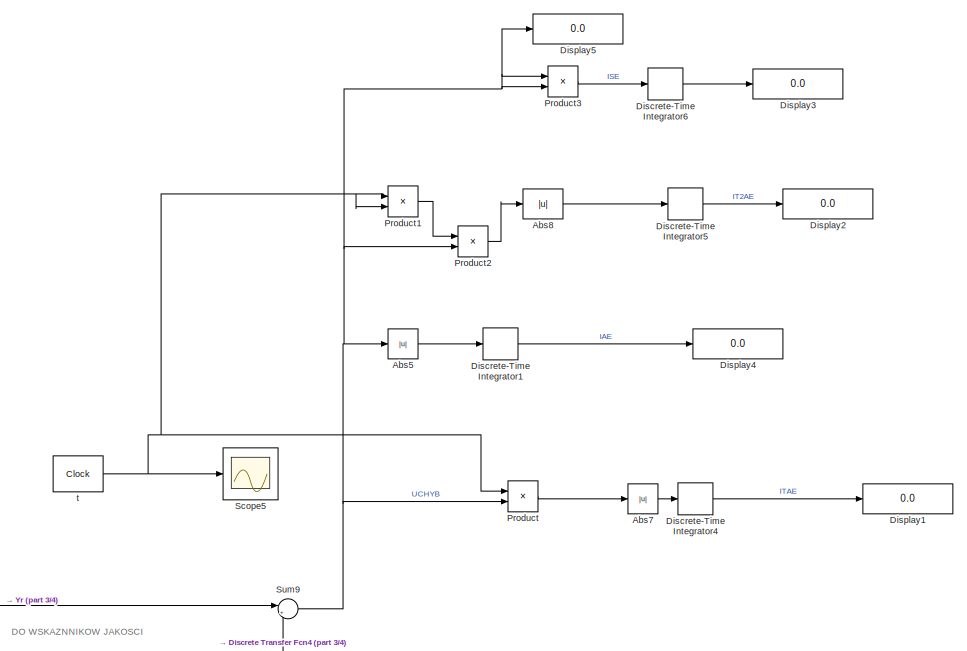
[diagram: root canvas - part 1/4, top center region]
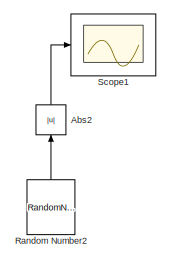
[diagram: root canvas - part 2/4, middle right region]
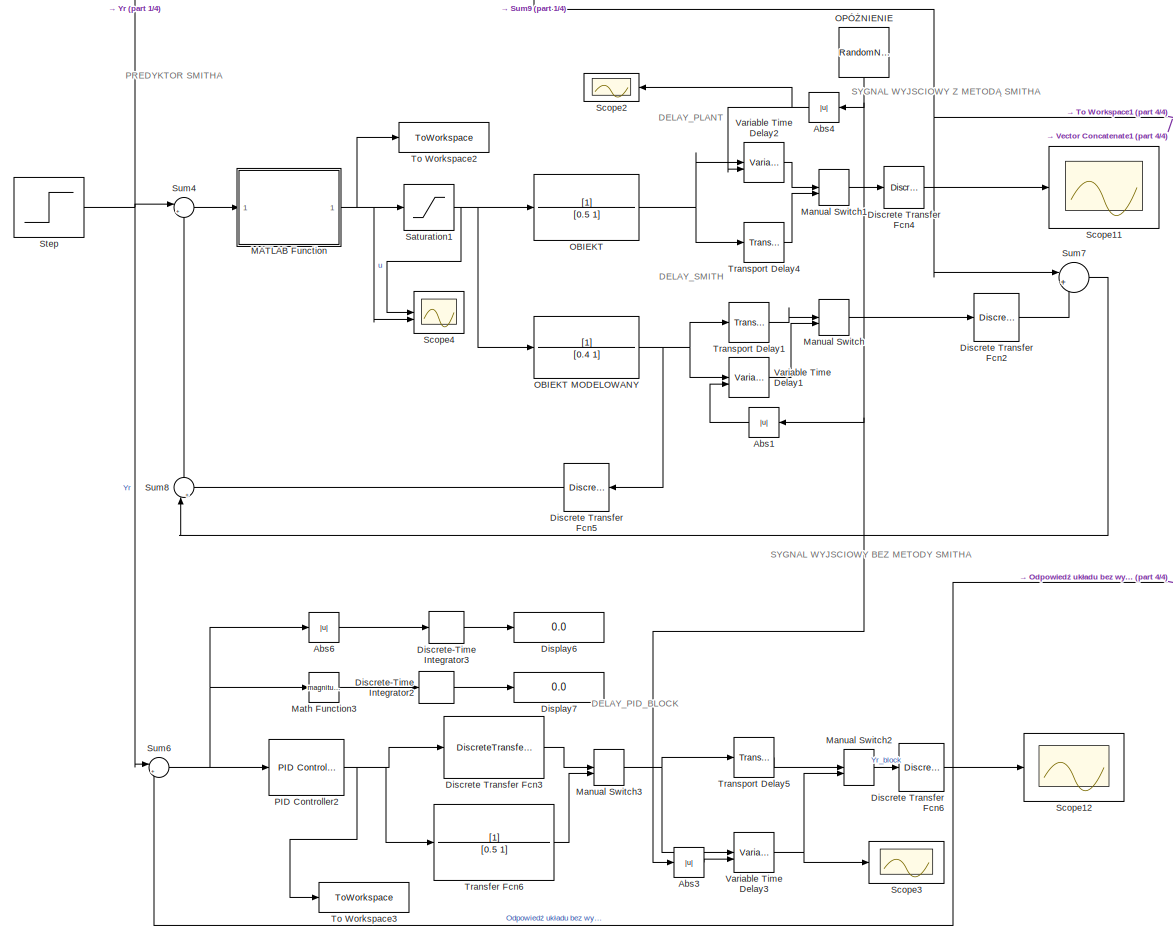
[diagram: root canvas - part 3/4, bottom center region]
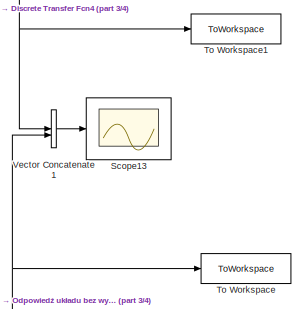
[diagram: root canvas - part 4/4, middle right region]
MODEL slx_78ecf700ef5c
KIND model
CONFIG AbsTol = auto
CONFIG EnableMultiTasking = off
CONFIG FixedStep = auto
CONFIG MaxStep = auto
CONFIG MinStep = auto
CONFIG RelTol = 1e-3
CONFIG SampleTimeConstraint = Unconstrained
CONFIG SolverName = FixedStepAuto
CONFIG StartTime = 0.0
CONFIG StopTime = 40
BLOCK [Abs] Abs1
  NameLocation = top
  SaturateOnIntegerOverflow = off
BLOCK [Abs] Abs2
  NameLocation = right
  SaturateOnIntegerOverflow = off
BLOCK [Abs] Abs3
  SaturateOnIntegerOverflow = off
BLOCK [Abs] Abs4
  NameLocation = top
  SaturateOnIntegerOverflow = off
BLOCK [Abs] Abs5
  SaturateOnIntegerOverflow = off
BLOCK [Abs] Abs6
  SaturateOnIntegerOverflow = off
BLOCK [Abs] Abs7
  SaturateOnIntegerOverflow = off
BLOCK [Abs] Abs8
  SaturateOnIntegerOverflow = off
BLOCK [DiscreteTransferFcn] Discrete Transfer Fcn2
  Denominator = [1]
  InputPortMap = u0
  SampleTime = Ts
BLOCK [DiscreteTransferFcn] Discrete Transfer Fcn3
  Denominator = [1 -0.9048]
  InputPortMap = u0
  Numerator = [ 0.09516]
  SampleTime = Ts
BLOCK [DiscreteTransferFcn] Discrete Transfer Fcn4
  Denominator = [1]
  InputPortMap = u0
  SampleTime = Ts
BLOCK [DiscreteTransferFcn] Discrete Transfer Fcn5
  Denominator = [1]
  InputPortMap = u0
  NameLocation = top
  SampleTime = Ts
BLOCK [DiscreteTransferFcn] Discrete Transfer Fcn6
  Denominator = [1]
  InputPortMap = u0
  SampleTime = Ts
BLOCK [DiscreteIntegrator] Discrete-Time Integrator1
  ICPrevOutput = DiscIntNeverNeededParam
  ICPrevScaledInput = DiscIntNeverNeededParam
  InitialConditionSetting = Auto
  SampleTime = Ts
BLOCK [DiscreteIntegrator] Discrete-Time Integrator2
  ICPrevOutput = DiscIntNeverNeededParam
  ICPrevScaledInput = DiscIntNeverNeededParam
  InitialConditionSetting = Auto
  SampleTime = Ts
BLOCK [DiscreteIntegrator] Discrete-Time Integrator3
  ICPrevOutput = DiscIntNeverNeededParam
  ICPrevScaledInput = DiscIntNeverNeededParam
  InitialConditionSetting = Auto
  SampleTime = Ts
BLOCK [DiscreteIntegrator] Discrete-Time Integrator4
  ICPrevOutput = DiscIntNeverNeededParam
  ICPrevScaledInput = DiscIntNeverNeededParam
  InitialConditionSetting = Auto
  SampleTime = Ts
BLOCK [DiscreteIntegrator] Discrete-Time Integrator5
  ICPrevOutput = DiscIntNeverNeededParam
  ICPrevScaledInput = DiscIntNeverNeededParam
  InitialConditionSetting = Auto
  SampleTime = Ts
BLOCK [DiscreteIntegrator] Discrete-Time Integrator6
  ICPrevOutput = DiscIntNeverNeededParam
  ICPrevScaledInput = DiscIntNeverNeededParam
  InitialConditionSetting = Auto
  SampleTime = Ts
BLOCK [Display] Display1
  Decimation = 1
BLOCK [Display] Display2
  Decimation = 1
BLOCK [Display] Display3
  Decimation = 1
BLOCK [Display] Display4
  Decimation = 1
BLOCK [Display] Display5
  Decimation = 1
BLOCK [Display] Display6
  Decimation = 1
BLOCK [Display] Display7
  Decimation = 1
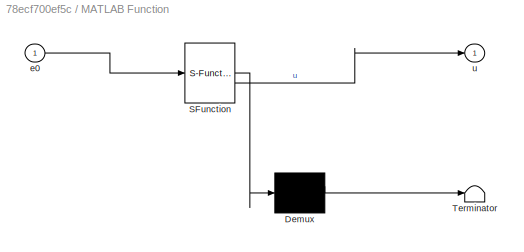
BLOCK [SubSystem] MATLAB Function
  ErrorFcn = Stateflow.Translate.translate
  LibrarySourceBlock = simulink/User-Defined\nFunctions/MATLAB Function
  PermitHierarchicalResolution = ExplicitOnly
  SFBlockType = MATLAB Function
  TreatAsAtomicUnit = on
BLOCK [Demux] MATLAB Function/ Demux 
  Outputs = 1
BLOCK [S-Function] MATLAB Function/ SFunction 
  EnableBusSupport = on
  FunctionName = sf_sfun
  PortCounts = [1 2]
  SFcnIsStateOwnerBlock = off
  SFunctionDeploymentMode = off
  Tag = Stateflow S-Function 2
BLOCK [Terminator] MATLAB Function/ Terminator 
BLOCK [Inport] MATLAB Function/e0
BLOCK [Outport] MATLAB Function/u
BLOCK [ManualSwitch] Manual Switch
  CurrentSetting = 0
BLOCK [ManualSwitch] Manual Switch1
BLOCK [ManualSwitch] Manual Switch2
  CurrentSetting = 0
BLOCK [ManualSwitch] Manual Switch3
  CurrentSetting = 0
BLOCK [Math] Math Function3
  Operator = magnitude^2
  SignedPower = on
BLOCK [TransferFcn] OBIEKT
  Denominator = [0.5 1]
BLOCK [TransferFcn] OBIEKT MODELOWANY
  Denominator = [0.4 1]
BLOCK [RandomNumber] OPÓŻNIENIE
  Mean = MeanValue_random
  NameLocation = left
  SampleTime = Ts
  Variance = 0.0001
BLOCK [Reference] PID Controller2  REF=slpidlib/PID Controller
  SourceBlock = slpidlib/PID Controller
  SourceType = PID 1dof
BLOCK [Product] Product
BLOCK [Product] Product1
BLOCK [Product] Product2
BLOCK [Product] Product3
BLOCK [RandomNumber] Random Number2
  Mean = 0.08
  NameLocation = right
  SampleTime = 0.01
  Variance = 0.0001
BLOCK [Saturate] Saturation1
  LowerLimit = 0
  UpperLimit = 1000
BLOCK [Scope] Scope1
  Floating = off
  NumInputPorts = 1
  ScopeSpecificationString = Simulink.scopes.TimeScopeBlockCfg('CurrentConfiguration', extmgr.ConfigurationSet(extmgr.Configuration('Core','General UI',true),extmgr.Configuration('Core','Source UI',true),extmgr.Configuration('Sources','WiredSimulink',true,'DataLoggingVariableName','ScopeData1'),extmgr.Configuration('Visuals','Time Domain',true,'SerializedDisplays',{struct('MinYLimReal','0.04367','MaxYLimReal','0.11967','YLabe...<+1361ch>
BLOCK [Scope] Scope11
  Floating = off
  NumInputPorts = 1
  ScopeSpecificationString = Simulink.scopes.TimeScopeBlockCfg('CurrentConfiguration', extmgr.ConfigurationSet(extmgr.Configuration('Core','General UI',true),extmgr.Configuration('Core','Source UI',true),extmgr.Configuration('Sources','WiredSimulink',true,'DataLoggingVariableName','ScopeData2'),extmgr.Configuration('Visuals','Time Domain',true,'SerializedDisplays',{struct('MinYLimReal','-21.25','MaxYLimReal','191.25','YLabelR...<+1425ch>
BLOCK [Scope] Scope12
  Floating = off
  NumInputPorts = 1
  ScopeSpecificationString = Simulink.scopes.TimeScopeBlockCfg('CurrentConfiguration', extmgr.ConfigurationSet(extmgr.Configuration('Core','General UI',true),extmgr.Configuration('Core','Source UI',true),extmgr.Configuration('Sources','WiredSimulink',true,'DataLoggingVariableName','ScopeData3'),extmgr.Configuration('Visuals','Time Domain',true,'SerializedDisplays',{struct('MinYLimReal','-0.13564','MaxYLimReal','1.22078','YLab...<+1392ch>
BLOCK [Scope] Scope13
  Floating = off
  NumInputPorts = 1
  ScopeSpecificationString = Simulink.scopes.TimeScopeBlockCfg('CurrentConfiguration', extmgr.ConfigurationSet(extmgr.Configuration('Core','General UI',true),extmgr.Configuration('Core','Source UI',true),extmgr.Configuration('Sources','WiredSimulink',true,'DataLoggingVariableName','ScopeData4'),extmgr.Configuration('Visuals','Time Domain',true,'SerializedDisplays',{struct('MinYLimReal','-3.125','MaxYLimReal','28.125','YLabelR...<+1480ch>
BLOCK [Scope] Scope2
  Floating = off
  NameLocation = top
  NumInputPorts = 1
  ScopeSpecificationString = Simulink.scopes.TimeScopeBlockCfg('CurrentConfiguration', extmgr.ConfigurationSet(extmgr.Configuration('Core','General UI',true),extmgr.Configuration('Core','Source UI',true),extmgr.Configuration('Sources','WiredSimulink',true,'DataLoggingVariableName','ScopeData1'),extmgr.Configuration('Visuals','Time Domain',true,'SerializedDisplays',{struct('MinYLimReal','0.36367','MaxYLimReal','0.43967','YLabe...<+1361ch>
BLOCK [Scope] Scope3
  Floating = off
  NumInputPorts = 1
  ScopeSpecificationString = Simulink.scopes.TimeScopeBlockCfg('CurrentConfiguration', extmgr.ConfigurationSet(extmgr.Configuration('Core','General UI',true),extmgr.Configuration('Core','Source UI',true),extmgr.Configuration('Sources','WiredSimulink',true,'DataLoggingVariableName','ScopeData2'),extmgr.Configuration('Visuals','Time Domain',true,'SerializedDisplays',{struct('MinYLimReal','-0.20142','MaxYLimReal','1.81278','YLab...<+1379ch>
BLOCK [Scope] Scope4
  Floating = off
  NumInputPorts = 2
  ScopeSpecificationString = Simulink.scopes.TimeScopeBlockCfg('CurrentConfiguration', extmgr.ConfigurationSet(extmgr.Configuration('Core','General UI',true),extmgr.Configuration('Core','Source UI',true),extmgr.Configuration('Sources','WiredSimulink',true,'DataLoggingVariableName','ScopeData1'),extmgr.Configuration('Visuals','Time Domain',true,'SerializedDisplays',{struct('MinYLimReal','-0.01272','MaxYLimReal','0.14245','YLab...<+1417ch>
BLOCK [Scope] Scope5
  Floating = off
  NumInputPorts = 1
  ScopeSpecificationString = Simulink.scopes.TimeScopeBlockCfg('CurrentConfiguration', extmgr.ConfigurationSet(extmgr.Configuration('Core','General UI',true),extmgr.Configuration('Core','Source UI',true),extmgr.Configuration('Sources','WiredSimulink',true,'DataLoggingVariableName','ScopeData1'),extmgr.Configuration('Visuals','Time Domain',true,'SerializedDisplays',{struct('MinYLimReal','-5.00000','MaxYLimReal','45.00000','YLa...<+1418ch>
BLOCK [Step] Step
  After = Yr_step
  SampleTime = Ts
  Time = 0
BLOCK [Sum] Sum4
  Inputs = |+-
BLOCK [Sum] Sum6
  Inputs = |+-
BLOCK [Sum] Sum7
  Inputs = |+-
BLOCK [Sum] Sum8
  Inputs = |++
  NameLocation = right
BLOCK [Sum] Sum9
  Inputs = |+-
BLOCK [ToWorkspace] To Workspace
  FixptAsFi = on
  MaxDataPoints = inf
  SampleTime = -1
  SaveFormat = Timeseries
  VariableName = BEZ_SMITHA
BLOCK [ToWorkspace] To Workspace1
  FixptAsFi = on
  MaxDataPoints = inf
  SampleTime = -1
  SaveFormat = Timeseries
  VariableName = Z_SMITHEM
BLOCK [ToWorkspace] To Workspace2
  FixptAsFi = on
  MaxDataPoints = inf
  SampleTime = -1
  SaveFormat = Timeseries
  VariableName = STERUJACY_SMITH
BLOCK [ToWorkspace] To Workspace3
  FixptAsFi = on
  MaxDataPoints = inf
  SampleTime = -1
  SaveFormat = Timeseries
  VariableName = STERUJACY_BEZ_SMITH
BLOCK [TransferFcn] Transfer Fcn6
  Denominator = [0.5 1]
BLOCK [TransportDelay] Transport Delay1
  DelayTime = Max_delay
BLOCK [TransportDelay] Transport Delay4
  DelayTime = Max_delay
BLOCK [TransportDelay] Transport Delay5
  DelayTime = Max_delay
BLOCK [VariableTransportDelay] Variable Time Delay1
  MaximumDelay = Max_delay
  NameLocation = top
BLOCK [VariableTransportDelay] Variable Time Delay2
  MaximumDelay = Max_delay
  NameLocation = top
BLOCK [VariableTransportDelay] Variable Time Delay3
  MaximumDelay = Max_delay
  NameLocation = top
BLOCK [Concatenate] Vector Concatenate1
BLOCK [Clock] t
  Decimation = 1
ANNOTATION (root): DO WSKAZNNIKOW JAKOSCI
ANNOTATION (root): SYGNAL WYJSCIOWY BEZ METODY SMITHA
ANNOTATION (root): SYGNAL WYJSCIOWY Z METODĄ SMITHA
ANNOTATION (root): PREDYKTOR SMITHA
ANNOTATION (root): DELAY_PID_BLOCK
ANNOTATION (root): DELAY_PLANT
ANNOTATION (root): DELAY_SMITH
LINE Abs1:1 -> Variable Time Delay1:2
LINE Abs2:1 -> Scope1:1
LINE Abs3:1 -> Variable Time Delay3:2
NET Abs4:1 -> Scope2:1, Variable Time Delay2:2
LINE Abs5:1 -> Discrete-Time Integrator1:1
LINE Abs6:1 -> Discrete-Time Integrator3:1
LINE Abs7:1 -> Discrete-Time Integrator4:1
LINE Abs8:1 -> Discrete-Time Integrator5:1
LINE Discrete Transfer Fcn2:1 -> Sum7:2
LINE Discrete Transfer Fcn3:1 -> Manual Switch3:1
NET Discrete Transfer Fcn4:1 -> Scope11:1, Sum7:1, Sum9:2, To Workspace1:1, Vector Concatenate1:1
LINE Discrete Transfer Fcn5:1 -> Sum8:2
NET Discrete Transfer Fcn6:1 -> Scope12:1, Sum6:2, To Workspace:1, Vector Concatenate1:2
LINE Discrete-Time Integrator1:1 -> Display4:1
LINE Discrete-Time Integrator2:1 -> Display7:1
LINE Discrete-Time Integrator3:1 -> Display6:1
LINE Discrete-Time Integrator4:1 -> Display1:1
LINE Discrete-Time Integrator5:1 -> Display2:1
LINE Discrete-Time Integrator6:1 -> Display3:1
NET MATLAB Function:1 -> Saturation1:1, Scope4:2, To Workspace2:1
LINE Manual Switch1:1 -> Discrete Transfer Fcn4:1
LINE Manual Switch2:1 -> Discrete Transfer Fcn6:1
NET Manual Switch3:1 -> Transport Delay5:1, Variable Time Delay3:1
LINE Manual Switch:1 -> Discrete Transfer Fcn2:1
LINE Math Function3:1 -> Discrete-Time Integrator2:1
NET OBIEKT MODELOWANY:1 -> Discrete Transfer Fcn5:1, Transport Delay1:1, Variable Time Delay1:1
NET OBIEKT:1 -> Transport Delay4:1, Variable Time Delay2:1
NET OPÓŻNIENIE:1 -> Abs1:1, Abs3:1, Abs4:1
NET PID Controller2:1 -> Discrete Transfer Fcn3:1, To Workspace3:1, Transfer Fcn6:1
LINE Product1:1 -> Product2:1
LINE Product2:1 -> Abs8:1
LINE Product3:1 -> Discrete-Time Integrator6:1
LINE Product:1 -> Abs7:1
LINE Random Number2:1 -> Abs2:1
NET Saturation1:1 -> OBIEKT MODELOWANY:1, OBIEKT:1, Scope4:1
NET Step:1 -> Sum4:1, Sum6:1, Sum9:1
LINE Sum4:1 -> MATLAB Function:1
NET Sum6:1 -> Abs6:1, Math Function3:1, PID Controller2:1
LINE Sum7:1 -> Sum8:1
LINE Sum8:1 -> Sum4:2
NET Sum9:1 -> Abs5:1, Display5:1, Product2:2, Product3:1, Product3:2, Product:2
LINE Transfer Fcn6:1 -> Manual Switch3:2
LINE Transport Delay1:1 -> Manual Switch:1
LINE Transport Delay4:1 -> Manual Switch1:2
LINE Transport Delay5:1 -> Manual Switch2:1
LINE Variable Time Delay1:1 -> Manual Switch:2
LINE Variable Time Delay2:1 -> Manual Switch1:1
NET Variable Time Delay3:1 -> Manual Switch2:2, Scope3:1
LINE Vector Concatenate1:1 -> Scope13:1
NET t:1 -> Product1:1, Product1:2, Product:1, Scope5:1
note: NET lines group one-source signal fan-out (src -> all destinations, sorted); 1:1 wires keep LINE
CHART MATLAB Function states=1 transitions=1
  STATE_LABEL 'eML_blk_kernel()'
  STATE_LABEL 'SCRIPT:\nfunction u = PID(e0) \npersistent init e2 e1 u2 u1 ku1 ku2 ke0 ke1 ke2 ;\nif isempty(init)\n% Kp = 0.003577524793953;\n% Ki =0.0263995998474549;\n% Kd = -0.0003372324323117;\n% FCoef = 3.2;\nTs=0.01; %czas próbki\nKp = 0.352652053728451;\nKi =0.477399324378819;\nKd = 0;\nFCoef = 0.588685123145228;\ne2=0;\ne1=0;\nu2=0;\nu1=0;\n\na0 = (1 + FCoef * Ts);\na1 = -(2 + FCoef * Ts);\na2 = 1;\n\nb0=Kp*(1+FCoef * Ts) + ...<+340ch>'
CHART  states=0 transitions=0
